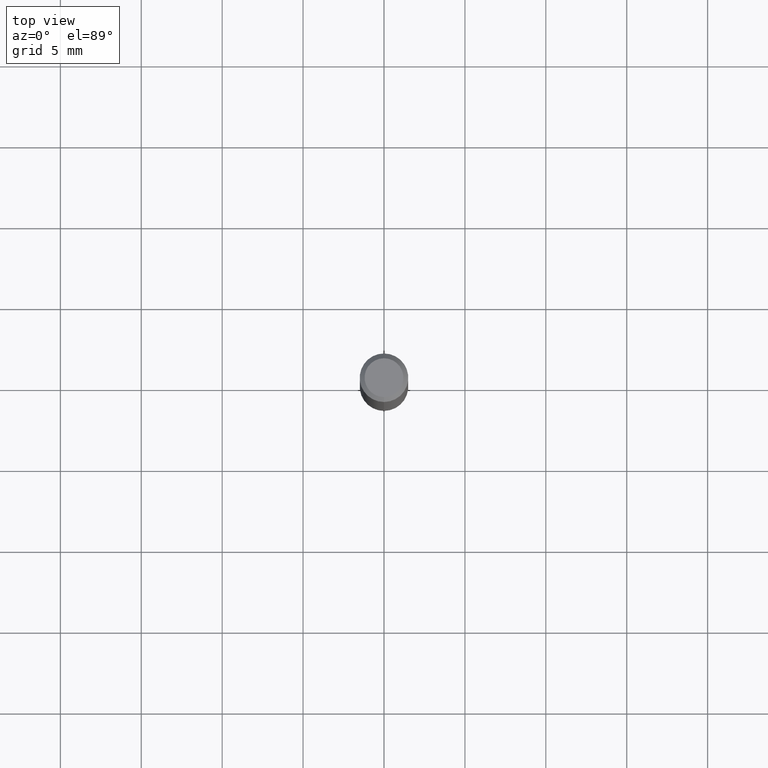
[diagram: clean part render]
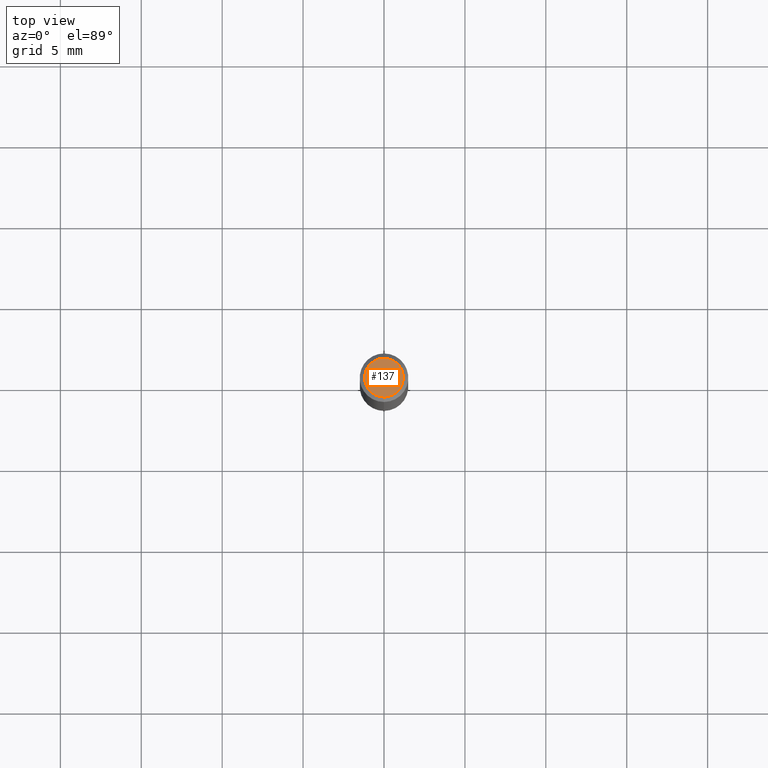
[diagram: same view with one face highlighted and labeled with its STEP entity id]
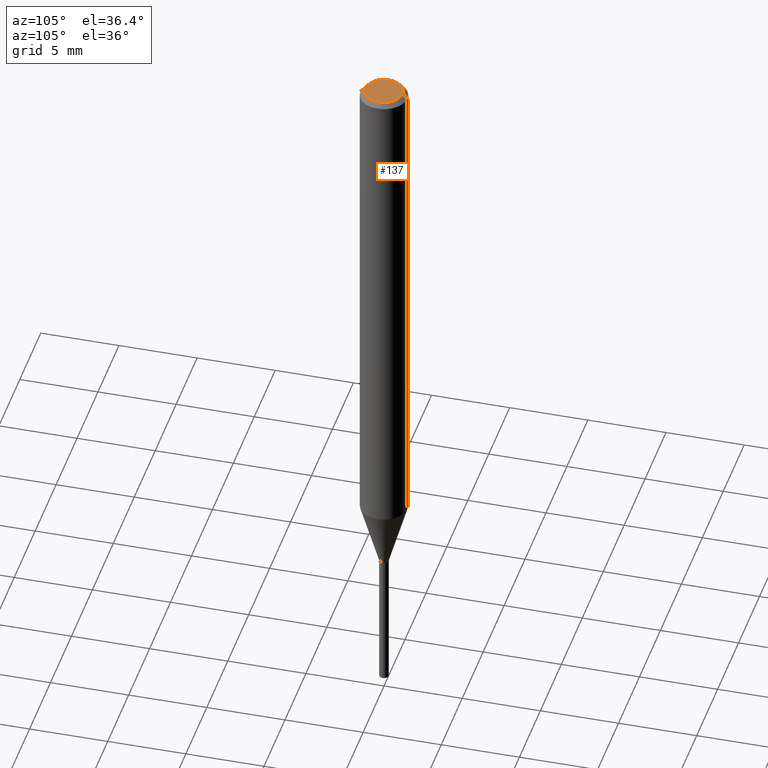
[diagram: same view with one face highlighted and labeled with its STEP entity id]
A machine part, top view. The second image highlights one B-rep face of the part: STEP entity #137.
A second angle (auxiliary view) of the same face is appended — the face is thin or edge-on in the first view.
In plain terms, the highlighted planar face has unit normal (-0, 0, 1).
Its self-contained STEP definition (entity closure, byte-faithful):
#101=EDGE_CURVE('',#141,#167,#236,.T.);
#137=ADVANCED_FACE('',(#280),#281,.T.);
#141=VERTEX_POINT('',#285);
#167=VERTEX_POINT('',#312);
#193=EDGE_CURVE('',#167,#141,#340,.T.);
#236=CIRCLE('',#381,1.2);
#280=FACE_OUTER_BOUND('',#436,.T.);
#281=PLANE('',#437);
#285=CARTESIAN_POINT('',(1.46952762458685E-016,-1.2,0.0));
#312=CARTESIAN_POINT('',(0.0,1.2,0.0));
#340=CIRCLE('',#516,1.2);
#381=AXIS2_PLACEMENT_3D('',#536,#537,#538);
#436=EDGE_LOOP('',(#615,#616));
#437=AXIS2_PLACEMENT_3D('',#617,#618,#619);
#516=AXIS2_PLACEMENT_3D('',#677,#678,#679);
#536=CARTESIAN_POINT('',(0.0,0.0,0.0));
#537=DIRECTION('',(0.0,0.0,-1.0));
#538=DIRECTION('',(0.0,1.0,0.0));
#615=ORIENTED_EDGE('',*,*,#193,.F.);
#616=ORIENTED_EDGE('',*,*,#101,.F.);
#617=CARTESIAN_POINT('',(0.0,0.6,0.0));
#618=DIRECTION('',(-0.0,0.0,1.0));
#619=DIRECTION('',(0.0,-1.0,0.0));
#677=CARTESIAN_POINT('',(0.0,0.0,0.0));
#678=DIRECTION('',(0.0,0.0,-1.0));
#679=DIRECTION('',(0.0,1.0,0.0));